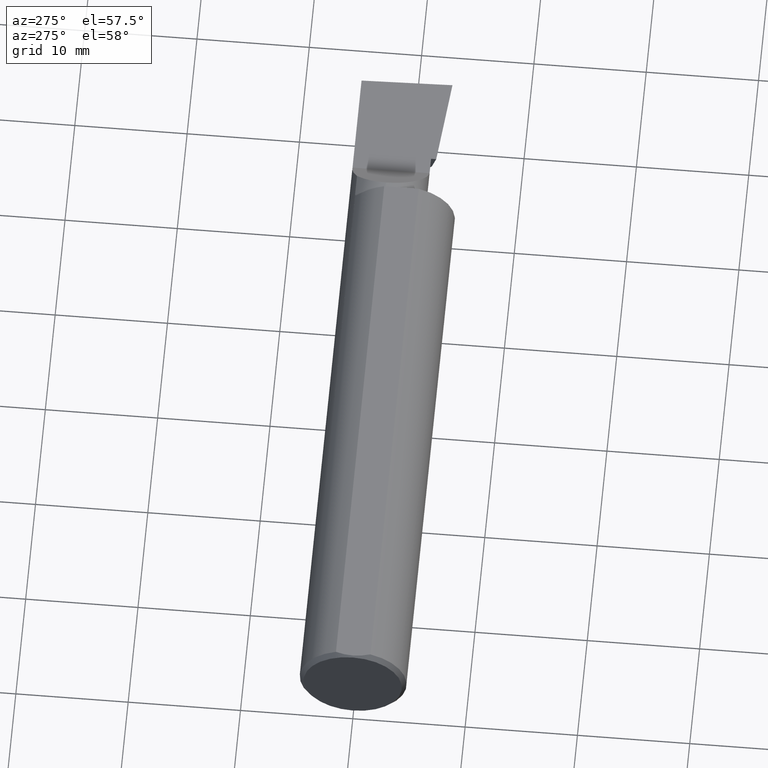
[diagram: clean part render]
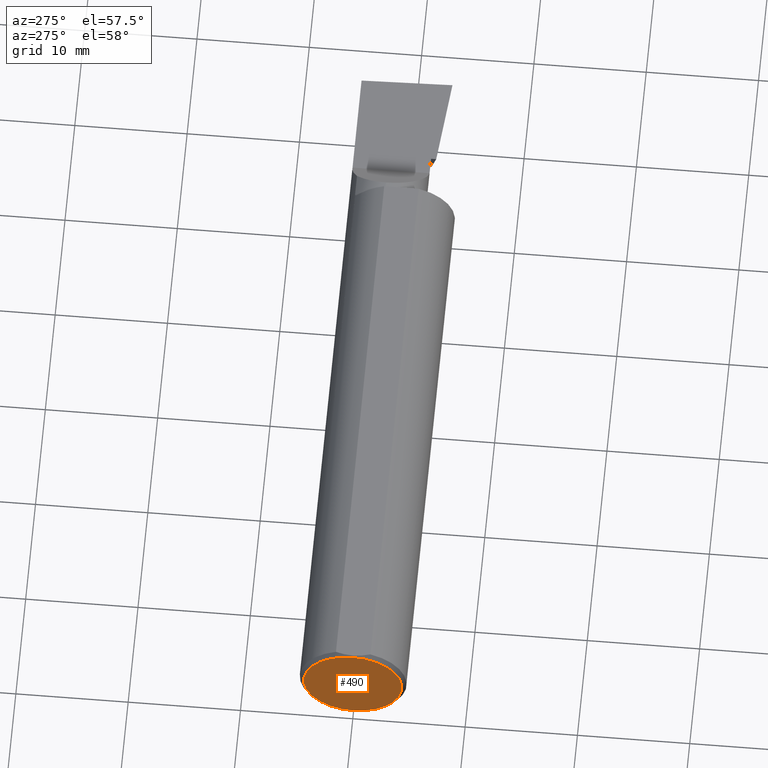
[diagram: same view with one face highlighted and labeled with its STEP entity id]
A machine part, auxiliary view. The second image highlights one B-rep face of the part: STEP entity #490.
In plain terms, the highlighted planar face has unit normal (1, 0, 0).
Its self-contained STEP definition (entity closure, byte-faithful):
#35 = CARTESIAN_POINT ( 'NONE',  ( 0.000000000000000000, 0.000000000000000000, 0.000000000000000000 ) ) ;
#69 = DIRECTION ( 'NONE',  ( -1.000000000000000000, -0.000000000000000000, -0.000000000000000000 ) ) ;
#105 = CARTESIAN_POINT ( 'NONE',  ( 0.000000000000000000, 0.000000000000000000, 0.000000000000000000 ) ) ;
#114 = CIRCLE ( 'NONE', #535, 0.1723499999999996424 ) ;
#243 = AXIS2_PLACEMENT_3D ( 'NONE', #590, #69, #717 ) ;
#271 = VERTEX_POINT ( 'NONE', #542 ) ;
#275 = DIRECTION ( 'NONE',  ( 1.000000000000000000, 0.000000000000000000, 0.000000000000000000 ) ) ;
#315 = EDGE_CURVE ( 'NONE', #271, #502, #559, .T. ) ;
#325 = DIRECTION ( 'NONE',  ( 0.000000000000000000, 0.000000000000000000, 1.000000000000000000 ) ) ;
#371 = EDGE_CURVE ( 'NONE', #502, #271, #114, .T. ) ;
#392 = FACE_OUTER_BOUND ( 'NONE', #512, .T. ) ;
#468 = ORIENTED_EDGE ( 'NONE', *, *, #371, .T. ) ;
#490 = ADVANCED_FACE ( 'NONE', ( #392 ), #513, .F. ) ;
#502 = VERTEX_POINT ( 'NONE', #511 ) ;
#511 = CARTESIAN_POINT ( 'NONE',  ( 0.000000000000000000, 0.000000000000000000, -0.1723499999999996424 ) ) ;
#512 = EDGE_LOOP ( 'NONE', ( #468, #550 ) ) ;
#513 = PLANE ( 'NONE',  #620 ) ;
#535 = AXIS2_PLACEMENT_3D ( 'NONE', #35, #751, #325 ) ;
#542 = CARTESIAN_POINT ( 'NONE',  ( 0.000000000000000000, 2.202527268266512578E-17, 0.1723499999999996424 ) ) ;
#550 = ORIENTED_EDGE ( 'NONE', *, *, #315, .T. ) ;
#559 = CIRCLE ( 'NONE', #243, 0.1723499999999996424 ) ;
#590 = CARTESIAN_POINT ( 'NONE',  ( 0.000000000000000000, 0.000000000000000000, 0.000000000000000000 ) ) ;
#620 = AXIS2_PLACEMENT_3D ( 'NONE', #105, #275, #670 ) ;
#670 = DIRECTION ( 'NONE',  ( 0.000000000000000000, 0.000000000000000000, -1.000000000000000000 ) ) ;
#717 = DIRECTION ( 'NONE',  ( 0.000000000000000000, 0.000000000000000000, 1.000000000000000000 ) ) ;
#751 = DIRECTION ( 'NONE',  ( -1.000000000000000000, -0.000000000000000000, -0.000000000000000000 ) ) ;